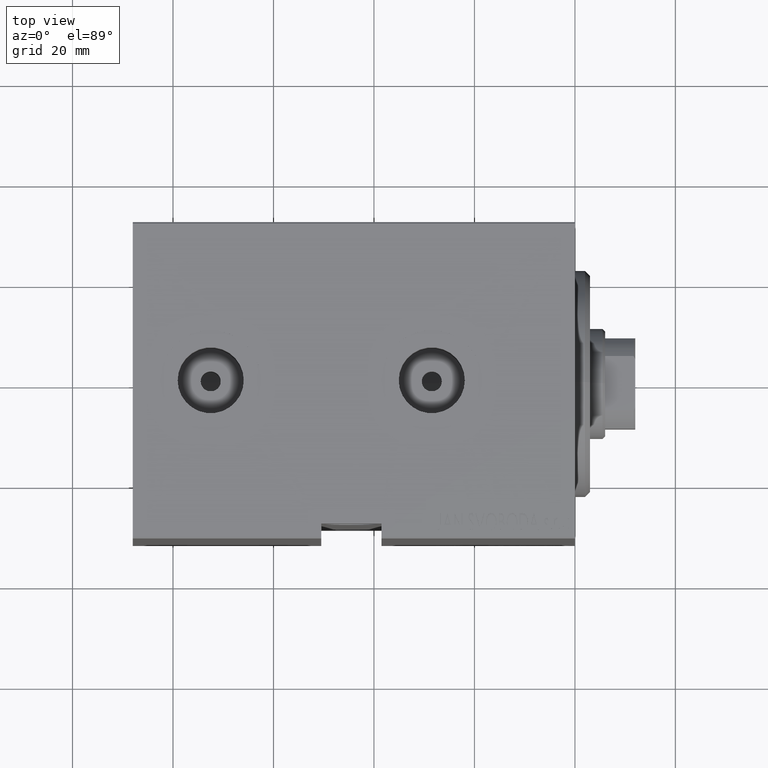
[diagram: clean part render]
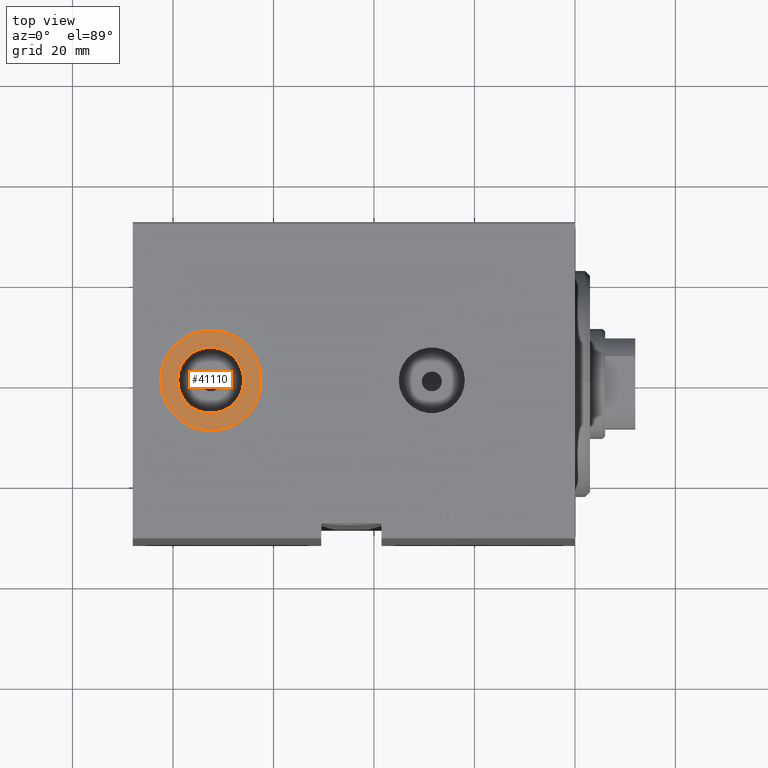
[diagram: same view with one face highlighted and labeled with its STEP entity id]
A machine part, top view. The second image highlights one B-rep face of the part: STEP entity #41110.
In plain terms, the highlighted planar face has unit normal (0, 0, 1).
Its self-contained STEP definition (entity closure, byte-faithful):
#1142 = DIRECTION ( 'NONE',  ( 0.000000000000000000, 0.000000000000000000, 1.000000000000000000 ) ) ;
#1785 = VERTEX_POINT ( 'NONE', #5750 ) ;
#2340 = EDGE_LOOP ( 'NONE', ( #38053, #31840 ) ) ;
#2900 = EDGE_CURVE ( 'NONE', #1785, #9686, #7110, .T. ) ;
#3540 = DIRECTION ( 'NONE',  ( 1.000000000000000000, 0.000000000000000000, 0.000000000000000000 ) ) ;
#4177 = CARTESIAN_POINT ( 'NONE',  ( 65.92000000000000171, -8.556182117781904317E-15, 42.39999999999999147 ) ) ;
#5029 = DIRECTION ( 'NONE',  ( 1.000000000000000000, 0.000000000000000000, 0.000000000000000000 ) ) ;
#5086 = EDGE_LOOP ( 'NONE', ( #19363, #28647 ) ) ;
#5750 = CARTESIAN_POINT ( 'NONE',  ( 62.50000000000001421, -8.137352912473510299E-15, 42.39999999999999147 ) ) ;
#7110 = CIRCLE ( 'NONE', #25098, 9.999999999999994671 ) ;
#9686 = VERTEX_POINT ( 'NONE', #10982 ) ;
#9748 = PLANE ( 'NONE',  #13045 ) ;
#10902 = CARTESIAN_POINT ( 'NONE',  ( 72.50000000000001421, -9.361999711620863359E-15, 42.39999999999999147 ) ) ;
#10928 = DIRECTION ( 'NONE',  ( 1.000000000000000000, 0.000000000000000000, 0.000000000000000000 ) ) ;
#10982 = CARTESIAN_POINT ( 'NONE',  ( 82.50000000000000000, -9.361999711620863359E-15, 42.39999999999999147 ) ) ;
#12231 = CIRCLE ( 'NONE', #13633, 6.580000000000002736 ) ;
#12797 = DIRECTION ( 'NONE',  ( 1.000000000000000000, 0.000000000000000000, -0.000000000000000000 ) ) ;
#12886 = DIRECTION ( 'NONE',  ( 0.000000000000000000, 0.000000000000000000, 1.000000000000000000 ) ) ;
#13045 = AXIS2_PLACEMENT_3D ( 'NONE', #22352, #26247, #12797 ) ;
#13633 = AXIS2_PLACEMENT_3D ( 'NONE', #36529, #12886, #3540 ) ;
#19363 = ORIENTED_EDGE ( 'NONE', *, *, #37226, .T. ) ;
#19396 = EDGE_CURVE ( 'NONE', #41536, #22986, #39277, .T. ) ;
#20547 = AXIS2_PLACEMENT_3D ( 'NONE', #24692, #34464, #21005 ) ;
#20702 = CARTESIAN_POINT ( 'NONE',  ( 72.50000000000001421, -9.361999711620863359E-15, 42.39999999999999147 ) ) ;
#21005 = DIRECTION ( 'NONE',  ( 1.000000000000000000, 0.000000000000000000, 0.000000000000000000 ) ) ;
#22352 = CARTESIAN_POINT ( 'NONE',  ( 72.50000000000001421, -9.361999711620863359E-15, 42.39999999999999147 ) ) ;
#22986 = VERTEX_POINT ( 'NONE', #23337 ) ;
#23337 = CARTESIAN_POINT ( 'NONE',  ( 79.08000000000001251, -9.361999711620863359E-15, 42.39999999999999147 ) ) ;
#24692 = CARTESIAN_POINT ( 'NONE',  ( 72.50000000000001421, -9.361999711620863359E-15, 42.39999999999999147 ) ) ;
#24714 = AXIS2_PLACEMENT_3D ( 'NONE', #10902, #1142, #5029 ) ;
#25098 = AXIS2_PLACEMENT_3D ( 'NONE', #20702, #40681, #10928 ) ;
#26247 = DIRECTION ( 'NONE',  ( 0.000000000000000000, 0.000000000000000000, 1.000000000000000000 ) ) ;
#28647 = ORIENTED_EDGE ( 'NONE', *, *, #2900, .T. ) ;
#31840 = ORIENTED_EDGE ( 'NONE', *, *, #19396, .F. ) ;
#34464 = DIRECTION ( 'NONE',  ( 0.000000000000000000, 0.000000000000000000, 1.000000000000000000 ) ) ;
#36223 = FACE_BOUND ( 'NONE', #2340, .T. ) ;
#36529 = CARTESIAN_POINT ( 'NONE',  ( 72.50000000000001421, -9.361999711620863359E-15, 42.39999999999999147 ) ) ;
#37123 = EDGE_CURVE ( 'NONE', #22986, #41536, #12231, .T. ) ;
#37226 = EDGE_CURVE ( 'NONE', #9686, #1785, #37884, .T. ) ;
#37884 = CIRCLE ( 'NONE', #24714, 9.999999999999994671 ) ;
#38053 = ORIENTED_EDGE ( 'NONE', *, *, #37123, .F. ) ;
#39277 = CIRCLE ( 'NONE', #20547, 6.580000000000002736 ) ;
#39696 = FACE_OUTER_BOUND ( 'NONE', #5086, .T. ) ;
#40681 = DIRECTION ( 'NONE',  ( 0.000000000000000000, 0.000000000000000000, 1.000000000000000000 ) ) ;
#41110 = ADVANCED_FACE ( 'NONE', ( #36223, #39696 ), #9748, .T. ) ;
#41536 = VERTEX_POINT ( 'NONE', #4177 ) ;